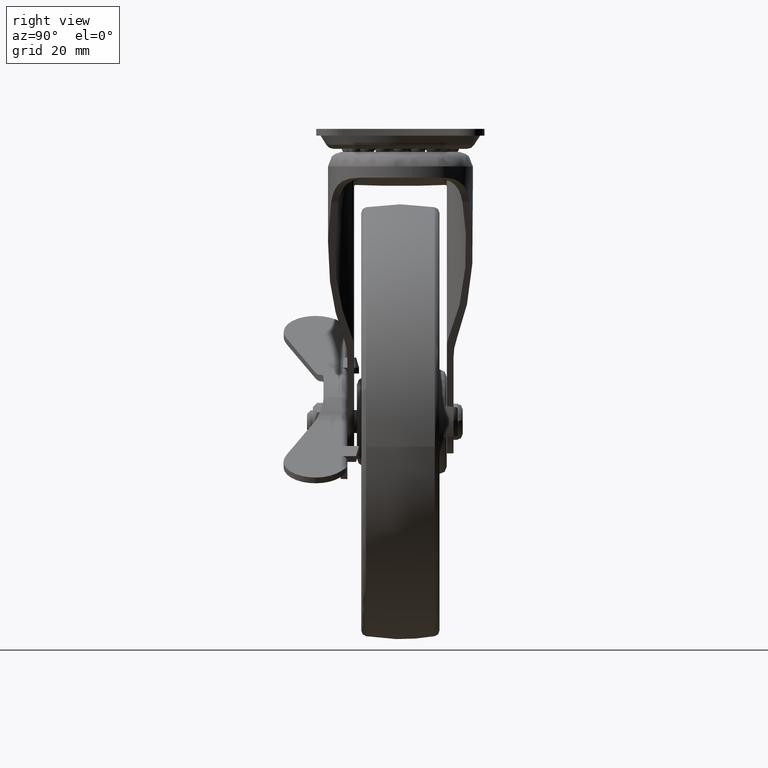
[diagram: clean part render]
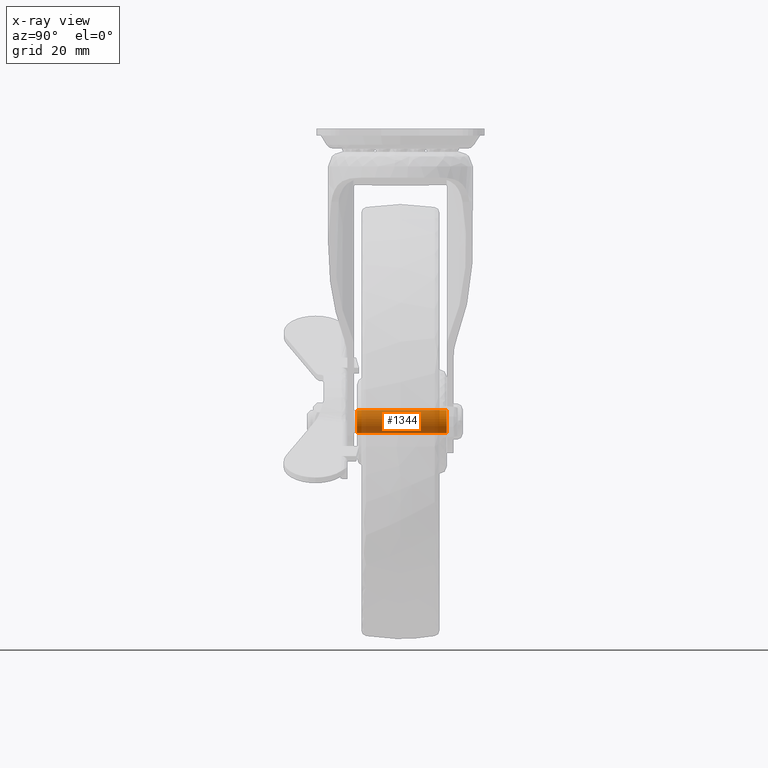
[diagram: x-ray — body ghosted, one internal face saturated and labeled with its STEP entity id]
A machine part, right view, then the same camera in x-ray: the body is ghosted and one INTERNAL B-rep face — a face not visible from any outside direction — is saturated and labeled: STEP entity #1344.
In plain terms, the highlighted face is a freeform B-spline surface patch.
Its self-contained STEP definition (entity closure, byte-faithful):
#1205=CARTESIAN_POINT('',(-3.054222571761859,16.774999999999999,-2.582968153528100));
#1206=CARTESIAN_POINT('',(-2.980299132926059,16.775000000000009,-2.670378691349157));
#1207=CARTESIAN_POINT('',(-2.901497484049150,16.774999999999999,-2.753418302775013));
#1208=CARTESIAN_POINT('',(-0.148079181274134,16.775000000000006,-5.654915786824163));
#1209=CARTESIAN_POINT('',(2.753418302775015,16.774999999999999,-2.901497484049148));
#1210=CARTESIAN_POINT('',(5.654915786824165,16.775000000000006,-0.148079181274133));
#1211=CARTESIAN_POINT('',(2.901497484049150,16.774999999999999,2.753418302775017));
#1212=CARTESIAN_POINT('',(0.148079181274134,16.775000000000006,5.654915786824168));
#1213=CARTESIAN_POINT('',(-2.753418302775015,16.774999999999999,2.901497484049151));
#1214=CARTESIAN_POINT('',(-3.054222571761859,-15.794375000000000,-2.582968153528100));
#1215=CARTESIAN_POINT('',(-2.980299132926059,-15.794374999999999,-2.670378691349157));
#1216=CARTESIAN_POINT('',(-2.901497484049150,-15.794375000000000,-2.753418302775013));
#1217=CARTESIAN_POINT('',(-0.148079181274134,-15.794375000000004,-5.654915786824163));
#1218=CARTESIAN_POINT('',(2.753418302775015,-15.794375000000000,-2.901497484049148));
#1219=CARTESIAN_POINT('',(5.654915786824165,-15.794375000000004,-0.148079181274133));
#1220=CARTESIAN_POINT('',(2.901497484049150,-15.794375000000000,2.753418302775017));
#1221=CARTESIAN_POINT('',(0.148079181274134,-15.794375000000004,5.654915786824168));
#1222=CARTESIAN_POINT('',(-2.753418302775015,-15.794375000000000,2.901497484049151));
#1230=(BOUNDED_SURFACE()B_SPLINE_SURFACE(2,1,((#1205,#1214),(#1206,#1215),(#1207,#1216),(#1208,#1217),(#1209,#1218),(#1210,#1219),(#1211,#1220),(#1212,#1221),(#1213,#1222)),.UNSPECIFIED.,.F.,.F.,.U.)B_SPLINE_SURFACE_WITH_KNOTS((3,2,2,2,3),(2,2),(0.0,0.265096679918781,6.892513677888300,13.519930675857820,20.147347673827340),(0.0,32.569375000000008),.UNSPECIFIED.)GEOMETRIC_REPRESENTATION_ITEM()RATIONAL_B_SPLINE_SURFACE(((0.977505800795127,0.977505800795127),(0.988284271247462,0.988284271247462),(1.0,1.0),(0.707106781186548,0.707106781186548),(1.0,1.0),(0.707106781186548,0.707106781186548),(1.0,1.0),(0.707106781186548,0.707106781186548),(1.0,1.0)))REPRESENTATION_ITEM('')SURFACE());
#1231=CARTESIAN_POINT('',(-3.054223753595408,16.000000000003809,-2.582968710753824));
#1232=VERTEX_POINT('',#1231);
#1233=CARTESIAN_POINT('',(0.0,16.0,-3.999999999999998));
#1234=VERTEX_POINT('',#1233);
#1235=CARTESIAN_POINT('',(-3.054223753595408,16.000000000003809,-2.582968710753824));
#1236=CARTESIAN_POINT('',(-2.843892992721496,16.000000000003549,-2.831783811598974));
#1237=CARTESIAN_POINT('',(-2.335219099097520,16.000000000002910,-3.302345336109490));
#1238=CARTESIAN_POINT('',(-1.303046547359272,16.000000000001620,-3.851360305884421));
#1239=CARTESIAN_POINT('',(-0.470639917487145,16.000000000000600,-4.000331818771170));
#1240=CARTESIAN_POINT('',(0.0,16.0,-3.999999999999998));
#1241=B_SPLINE_CURVE_WITH_KNOTS('',3,(#1235,#1236,#1237,#1238,#1239,#1240),.UNSPECIFIED.,.F.,.U.,(4,1,1,4),(0.000000115110293,0.977436405303122,2.063436853676736,3.475314082156569),.UNSPECIFIED.);
#1242=EDGE_CURVE('',#1232,#1234,#1241,.T.);
#1243=ORIENTED_EDGE('',*,*,#1242,.F.);
#1244=CARTESIAN_POINT('',(-3.054223750863360,-15.0,-2.582968713984328));
#1245=VERTEX_POINT('',#1244);
#1246=CARTESIAN_POINT('',(-3.054223753595408,16.000000000003809,-2.582968710753824));
#1247=CARTESIAN_POINT('',(-3.054223750863360,-15.0,-2.582968713984328));
#1248=QUASI_UNIFORM_CURVE('',1,(#1246,#1247),.UNSPECIFIED.,.F.,.U.);
#1249=EDGE_CURVE('',#1232,#1245,#1248,.T.);
#1250=ORIENTED_EDGE('',*,*,#1249,.T.);
#1251=CARTESIAN_POINT('',(0.0,-15.0,-3.999999999999998));
#1252=VERTEX_POINT('',#1251);
#1253=CARTESIAN_POINT('',(-3.054223750863360,-15.0,-2.582968713984328));
#1254=CARTESIAN_POINT('',(-2.704016006329574,-15.0,-2.998122933665379));
#1255=CARTESIAN_POINT('',(-2.034689678711875,-15.0,-3.521748863865247));
#1256=CARTESIAN_POINT('',(-0.941143526181485,-15.0,-3.924361786685350));
#1257=CARTESIAN_POINT('',(-0.325812155322348,-14.999999999999970,-4.000087443531943));
#1258=CARTESIAN_POINT('',(0.0,-15.0,-3.999999999999998));
#1259=B_SPLINE_CURVE_WITH_KNOTS('',3,(#1253,#1254,#1255,#1256,#1257,#1258),.UNSPECIFIED.,.F.,.U.,(4,1,1,4),(0.000000115110365,1.629071547896533,2.497879934262413,3.475314077925312),.UNSPECIFIED.);
#1260=EDGE_CURVE('',#1245,#1252,#1259,.T.);
#1261=ORIENTED_EDGE('',*,*,#1260,.T.);
#1262=CARTESIAN_POINT('',(3.999999999996724,-15.0,0.000005119947374));
#1263=VERTEX_POINT('',#1262);
#1264=CARTESIAN_POINT('',(0.0,-15.0,-3.999999999999998));
#1265=CARTESIAN_POINT('',(0.392721142583656,-14.999999999999980,-4.000183071290556));
#1266=CARTESIAN_POINT('',(1.047107063855088,-15.000000000000020,-3.902794002025720));
#1267=CARTESIAN_POINT('',(1.897730990860040,-14.999999999999980,-3.550408456317602));
#1268=CARTESIAN_POINT('',(2.663410891633874,-15.000000000000020,-3.038992004851206));
#1269=CARTESIAN_POINT('',(3.263157278761582,-14.999999999999989,-2.377192651930252));
#1270=CARTESIAN_POINT('',(3.833390702766436,-15.000000000000011,-1.341213969636012));
#1271=CARTESIAN_POINT('',(4.000772900569978,-15.0,-0.556489309478611));
#1272=CARTESIAN_POINT('',(3.999999999996724,-15.0,0.000005119947374));
#1273=B_SPLINE_CURVE_WITH_KNOTS('',3,(#1264,#1265,#1266,#1267,#1268,#1269,#1270,#1271,#1272),.UNSPECIFIED.,.F.,.U.,(4,1,1,1,1,1,4),(0.000000488141311,1.178123957096894,1.963549707979980,2.748979340334711,3.927079609634573,4.614328076166020,6.283345863140281),.UNSPECIFIED.);
#1274=EDGE_CURVE('',#1252,#1263,#1273,.T.);
#1275=ORIENTED_EDGE('',*,*,#1274,.T.);
#1276=CARTESIAN_POINT('',(0.0,-15.0,4.000000000000002));
#1277=VERTEX_POINT('',#1276);
#1278=CARTESIAN_POINT('',(3.999999999996724,-15.0,0.000005119947374));
#1279=CARTESIAN_POINT('',(4.000156829662105,-15.000000000000030,0.392712331070835));
#1280=CARTESIAN_POINT('',(3.883461342189579,-14.999999999999959,1.178064941926401));
#1281=CARTESIAN_POINT('',(3.444996150136524,-15.000000000000030,2.105089090235089));
#1282=CARTESIAN_POINT('',(2.829226962705836,-14.999999999999970,2.874434004751850));
#1283=CARTESIAN_POINT('',(2.158874548712979,-14.999999999999989,3.410902644242656));
#1284=CARTESIAN_POINT('',(1.177892602944702,-14.999999999999980,3.874868201834312));
#1285=CARTESIAN_POINT('',(0.458204055681941,-15.000000000000050,4.000333836446166));
#1286=CARTESIAN_POINT('',(0.0,-15.0,4.000000000000002));
#1287=B_SPLINE_CURVE_WITH_KNOTS('',3,(#1278,#1279,#1280,#1281,#1282,#1283,#1284,#1285,#1286),.UNSPECIFIED.,.F.,.U.,(4,1,1,1,1,1,4),(0.000000495145593,1.178122879613584,2.356264584675421,3.043562512850867,4.123401532335551,4.908873342826071,6.283340091622296),.UNSPECIFIED.);
#1288=EDGE_CURVE('',#1263,#1277,#1287,.T.);
#1289=ORIENTED_EDGE('',*,*,#1288,.T.);
#1290=CARTESIAN_POINT('',(-2.753417197908354,-15.0,2.901496770358410));
#1291=VERTEX_POINT('',#1290);
#1292=CARTESIAN_POINT('',(0.0,-15.0,4.000000000000002));
#1293=CARTESIAN_POINT('',(-0.411251088609516,-15.000000000000020,4.000174048342378));
#1294=CARTESIAN_POINT('',(-1.423504933383600,-14.999999999999959,3.842568239925676));
#1295=CARTESIAN_POINT('',(-2.317997950091762,-15.000000000000030,3.316144597287696));
#1296=CARTESIAN_POINT('',(-2.753417197908354,-15.0,2.901496770358410));
#1297=B_SPLINE_CURVE_WITH_KNOTS('',3,(#1292,#1293,#1294,#1295,#1296),.UNSPECIFIED.,.F.,.U.,(4,1,4),(0.000000113859319,1.233780044843998,3.036943314918333),.UNSPECIFIED.);
#1298=EDGE_CURVE('',#1277,#1291,#1297,.T.);
#1299=ORIENTED_EDGE('',*,*,#1298,.T.);
#1300=CARTESIAN_POINT('',(-2.753417195296256,15.999999999996881,2.901496772837199));
#1301=VERTEX_POINT('',#1300);
#1302=CARTESIAN_POINT('',(-2.753417195296256,15.999999999996881,2.901496772837199));
#1303=CARTESIAN_POINT('',(-2.753417197908354,-15.0,2.901496770358410));
#1304=QUASI_UNIFORM_CURVE('',1,(#1302,#1303),.UNSPECIFIED.,.F.,.U.);
#1305=EDGE_CURVE('',#1301,#1291,#1304,.T.);
#1306=ORIENTED_EDGE('',*,*,#1305,.F.);
#1307=CARTESIAN_POINT('',(0.0,16.0,4.000000000000002));
#1308=VERTEX_POINT('',#1307);
#1309=CARTESIAN_POINT('',(0.0,16.0,4.000000000000002));
#1310=CARTESIAN_POINT('',(-0.411252621151415,15.999999999999529,4.000176067994864));
#1311=CARTESIAN_POINT('',(-1.423498923031226,15.999999999998400,3.842560710016457));
#1312=CARTESIAN_POINT('',(-2.318003388031459,15.999999999997380,3.316151936550770));
#1313=CARTESIAN_POINT('',(-2.753417195296256,15.999999999996881,2.901496772837199));
#1314=B_SPLINE_CURVE_WITH_KNOTS('',3,(#1309,#1310,#1311,#1312,#1313),.UNSPECIFIED.,.F.,.U.,(4,1,4),(0.000000113859307,1.233780043380896,3.036943311317045),.UNSPECIFIED.);
#1315=EDGE_CURVE('',#1308,#1301,#1314,.T.);
#1316=ORIENTED_EDGE('',*,*,#1315,.F.);
#1317=CARTESIAN_POINT('',(3.999999999996724,16.0,0.000005119947374));
#1318=VERTEX_POINT('',#1317);
#1319=CARTESIAN_POINT('',(3.999999999996724,16.0,0.000005119947374));
#1320=CARTESIAN_POINT('',(4.000157631220384,16.000000000000028,0.392715046732524));
#1321=CARTESIAN_POINT('',(3.883446126342081,16.0,1.178039618693029));
#1322=CARTESIAN_POINT('',(3.346142405348188,15.999999999999970,2.314529402943466));
#1323=CARTESIAN_POINT('',(2.544702895066609,16.000000000000028,3.156363111988624));
#1324=CARTESIAN_POINT('',(1.406592501824867,15.999999999999920,3.819358389445918));
#1325=CARTESIAN_POINT('',(0.556501782767986,16.000000000000011,4.000800517404918));
#1326=CARTESIAN_POINT('',(0.0,16.0,4.000000000000002));
#1327=B_SPLINE_CURVE_WITH_KNOTS('',3,(#1319,#1320,#1321,#1322,#1323,#1324,#1325,#1326),.UNSPECIFIED.,.F.,.U.,(4,1,1,1,1,4),(0.000000495145593,1.178122879613584,2.356264584675421,3.730667524895925,4.614323834630031,6.283340091622296),.UNSPECIFIED.);
#1328=EDGE_CURVE('',#1318,#1308,#1327,.T.);
#1329=ORIENTED_EDGE('',*,*,#1328,.F.);
#1330=CARTESIAN_POINT('',(0.0,16.0,-3.999999999999998));
#1331=CARTESIAN_POINT('',(0.392719405737868,16.0,-4.000179916044726));
#1332=CARTESIAN_POINT('',(1.112545952344879,16.0,-3.893056861873401));
#1333=CARTESIAN_POINT('',(2.197912182542838,16.000000000000011,-3.412269919026095));
#1334=CARTESIAN_POINT('',(3.002491493032579,15.999999999999970,-2.718145461368099));
#1335=CARTESIAN_POINT('',(3.623624862453535,16.000000000000039,-1.788400353749273));
#1336=CARTESIAN_POINT('',(3.935639275138176,15.999999999999950,-0.916324146474888));
#1337=CARTESIAN_POINT('',(4.000012014907217,16.000000000000021,-0.261784339974172));
#1338=CARTESIAN_POINT('',(3.999999999996724,16.0,0.000005119947374));
#1339=B_SPLINE_CURVE_WITH_KNOTS('',3,(#1330,#1331,#1332,#1333,#1334,#1335,#1336,#1337,#1338),.UNSPECIFIED.,.F.,.U.,(4,1,1,1,1,1,4),(0.000000488141311,1.178123957096894,2.159941029955500,3.534367021522359,4.319796646593622,5.497939436730681,6.283345863140281),.UNSPECIFIED.);
#1340=EDGE_CURVE('',#1234,#1318,#1339,.T.);
#1341=ORIENTED_EDGE('',*,*,#1340,.F.);
#1342=EDGE_LOOP('',(#1243,#1250,#1261,#1275,#1289,#1299,#1306,#1316,#1329,#1341));
#1343=FACE_OUTER_BOUND('',#1342,.T.);
#1344=ADVANCED_FACE('',(#1343),#1230,.F.);